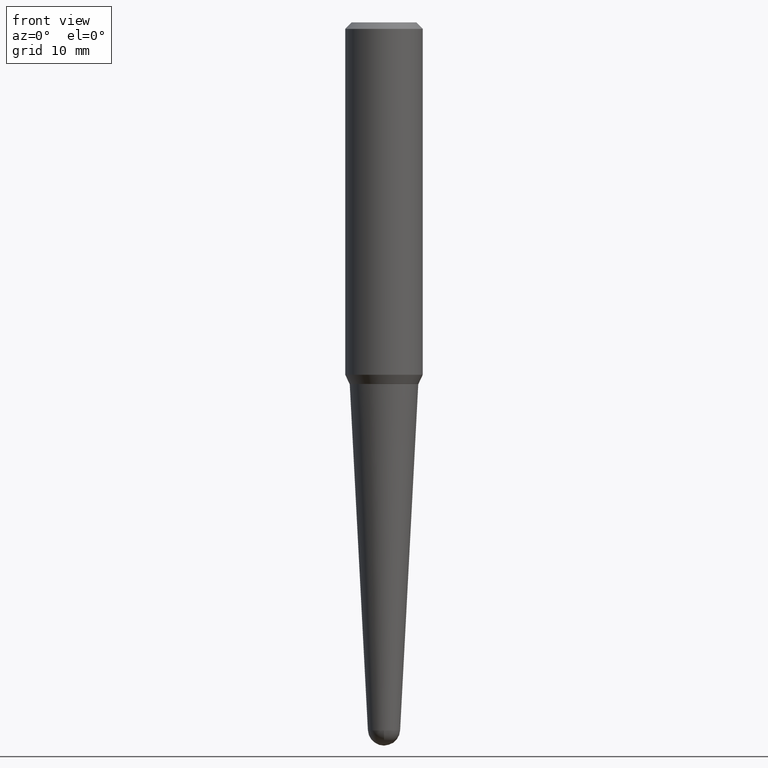
[diagram: clean part render]
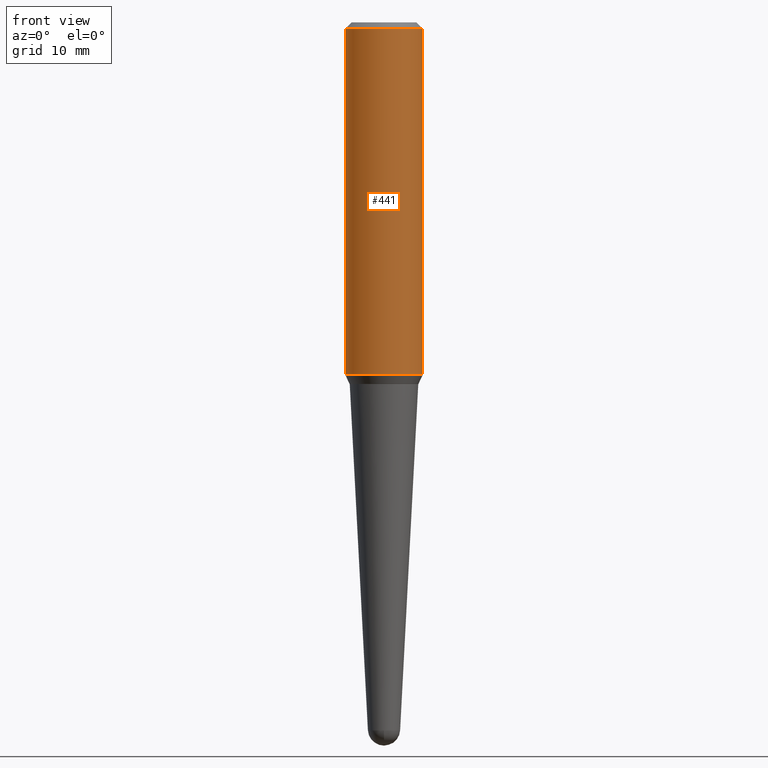
[diagram: same view with one face highlighted and labeled with its STEP entity id]
A machine part, front view. The second image highlights one B-rep face of the part: STEP entity #441.
In plain terms, the highlighted cylindrical surface (partial cylindrical patch) has radius 4.7625 mm, axis along (-0, 0, 1).
Its self-contained STEP definition (entity closure, byte-faithful):
#21 = CARTESIAN_POINT ( 'NONE',  ( -1.450455682483482035E-44, 2.070866303999251778E-30, 5.931196827434296760E-16 ) ) ;
#25 = CARTESIAN_POINT ( 'NONE',  ( 0.1875000000000002220, -7.262868483743506194E-15, -1.705168209104609645 ) ) ;
#33 = EDGE_CURVE ( 'NONE', #209, #266, #203, .T. ) ;
#39 = CARTESIAN_POINT ( 'NONE',  ( 0.1874999999999999722, -1.418414293905023123E-15, -0.03125000000000003469 ) ) ;
#51 = AXIS2_PLACEMENT_3D ( 'NONE', #21, #130, #142 ) ;
#57 = CARTESIAN_POINT ( 'NONE',  ( 4.169935664663897396E-29, -5.953562981677331975E-15, -1.705168209104609645 ) ) ;
#106 = ORIENTED_EDGE ( 'NONE', *, *, #367, .T. ) ;
#123 = ORIENTED_EDGE ( 'NONE', *, *, #33, .F. ) ;
#130 = DIRECTION ( 'NONE',  ( -2.445468806185136597E-29, 3.491481338843145583E-15, 1.000000000000000000 ) ) ;
#142 = DIRECTION ( 'NONE',  ( 1.000000000000000000, -6.982962677686266711E-15, 4.852736867747363404E-29 ) ) ;
#145 = EDGE_LOOP ( 'NONE', ( #245, #106, #231, #123 ) ) ;
#146 = CARTESIAN_POINT ( 'NONE',  ( -0.1874999999999999722, -1.699068257207900914E-15, -0.03125000000000003469 ) ) ;
#150 = DIRECTION ( 'NONE',  ( 1.000000000000000000, -6.982962677686266711E-15, 0.000000000000000000 ) ) ;
#159 = EDGE_CURVE ( 'NONE', #270, #209, #430, .T. ) ;
#175 = CIRCLE ( 'NONE', #429, 0.1875000000000002220 ) ;
#181 = CARTESIAN_POINT ( 'NONE',  ( 0.1875000000000001110, -1.309305502066173628E-15, 5.931196827434387479E-16 ) ) ;
#184 = CARTESIAN_POINT ( 'NONE',  ( 7.642090019328561499E-31, -1.091087918388484350E-16, -0.03125000000000003469 ) ) ;
#187 = CARTESIAN_POINT ( 'NONE',  ( -0.1875000000000002220, -4.621295352127141759E-15, -1.705168209104609645 ) ) ;
#188 = DIRECTION ( 'NONE',  ( -2.445468806185136597E-29, 3.491481338843145583E-15, 1.000000000000000000 ) ) ;
#203 = CIRCLE ( 'NONE', #400, 0.1874999999999999722 ) ;
#209 = VERTEX_POINT ( 'NONE', #146 ) ;
#231 = ORIENTED_EDGE ( 'NONE', *, *, #319, .T. ) ;
#235 = VECTOR ( 'NONE', #462, 39.37007874015748143 ) ;
#240 = CYLINDRICAL_SURFACE ( 'NONE', #51, 0.1875000000000001110 ) ;
#245 = ORIENTED_EDGE ( 'NONE', *, *, #159, .F. ) ;
#266 = VERTEX_POINT ( 'NONE', #39 ) ;
#270 = VERTEX_POINT ( 'NONE', #187 ) ;
#272 = VERTEX_POINT ( 'NONE', #25 ) ;
#312 = DIRECTION ( 'NONE',  ( -2.445468806185136597E-29, 3.491481338843145583E-15, 1.000000000000000000 ) ) ;
#315 = DIRECTION ( 'NONE',  ( 1.000000000000000000, -6.982962677686265133E-15, 0.000000000000000000 ) ) ;
#319 = EDGE_CURVE ( 'NONE', #272, #266, #388, .T. ) ;
#320 = DIRECTION ( 'NONE',  ( -2.445468806185136877E-29, 3.491481338843145188E-15, 1.000000000000000000 ) ) ;
#325 = CARTESIAN_POINT ( 'NONE',  ( -0.1875000000000001110, 1.332267629550190807E-15, 5.931196827434205055E-16 ) ) ;
#338 = VECTOR ( 'NONE', #320, 39.37007874015748143 ) ;
#344 = FACE_OUTER_BOUND ( 'NONE', #145, .T. ) ;
#367 = EDGE_CURVE ( 'NONE', #270, #272, #175, .T. ) ;
#388 = LINE ( 'NONE', #181, #338 ) ;
#400 = AXIS2_PLACEMENT_3D ( 'NONE', #184, #188, #150 ) ;
#429 = AXIS2_PLACEMENT_3D ( 'NONE', #57, #312, #315 ) ;
#430 = LINE ( 'NONE', #325, #235 ) ;
#441 = ADVANCED_FACE ( 'NONE', ( #344 ), #240, .T. ) ;
#462 = DIRECTION ( 'NONE',  ( -2.445468806185136877E-29, 3.491481338843145188E-15, 1.000000000000000000 ) ) ;